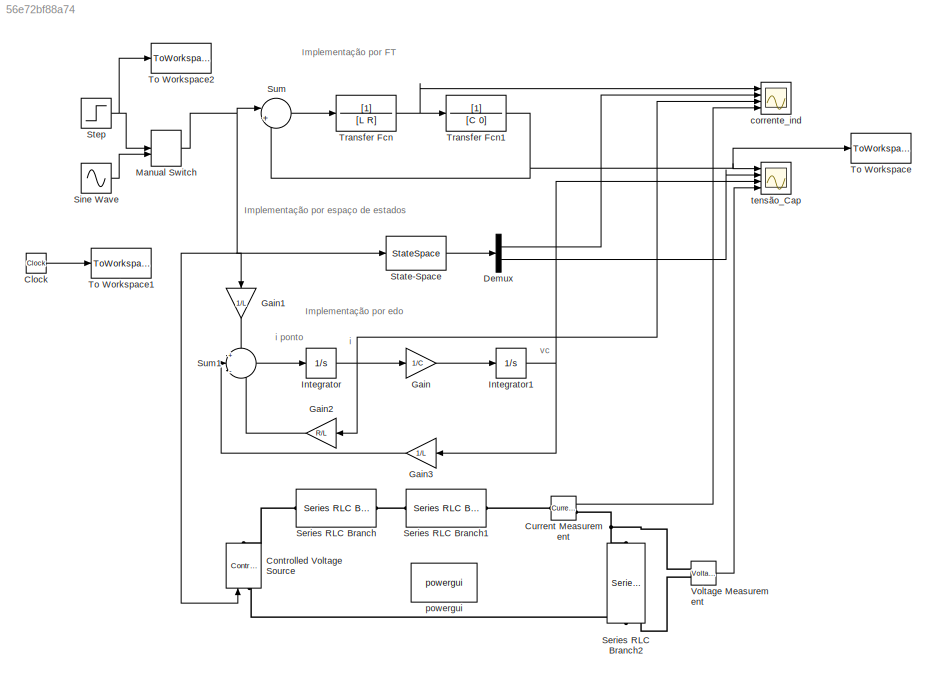
MODEL slx_56e72bf88a74
KIND model
CONFIG AbsTol = auto
CONFIG EnableMultiTasking = on
CONFIG FixedStep = auto
CONFIG MaxStep = 1e-4
CONFIG MinStep = auto
CONFIG RelTol = 1e-3
CONFIG SampleTimeConstraint = Unconstrained
CONFIG Solver = ode23tb
CONFIG SolverName = ode23tb
CONFIG StartTime = 0.0
CONFIG StopTime = 10
BLOCK [Clock] Clock
  Decimation = 5
BLOCK [Reference] Controlled Voltage Source  REF=powerlib/Electrical
Sources/Controlled Voltage Source
  NameLocation = right
  Ports = [1, 0, 0, 0, 0, 1, 1]
  SourceBlock = powerlib/Electrical\nSources/Controlled Voltage Source
  SourceProductBaseCode = PS
  SourceType = Controlled Voltage Source
BLOCK [Reference] Current Measurement  REF=powerlib/Measurements/Current Measurement
  Ports = [0, 1, 0, 0, 0, 1, 1]
  SourceBlock = powerlib/Measurements/Current Measurement
  SourceProductBaseCode = PS
  SourceType = Current Measurement
  UserDataPersistent = on
BLOCK [Demux] Demux
  Outputs = 2
  Ports = [1, 2]
BLOCK [Gain] Gain
  Gain = 1/C
BLOCK [Gain] Gain1
  Gain = 1/L
  NameLocation = left
BLOCK [Gain] Gain2
  Gain = R/L
  NameLocation = top
BLOCK [Gain] Gain3
  Gain = 1/L
  NameLocation = top
BLOCK [Integrator] Integrator
  Ports = [1, 1]
BLOCK [Integrator] Integrator1
  Ports = [1, 1]
BLOCK [ManualSwitch] Manual Switch
BLOCK [Reference] Series RLC Branch  REF=powerlib/Elements/Series RLC Branch
  Ports = [0, 0, 0, 0, 0, 1, 1]
  SourceBlock = powerlib/Elements/Series RLC Branch
  SourceProductBaseCode = PS
  SourceType = Series RLC Branch
BLOCK [Reference] Series RLC Branch1  REF=powerlib/Elements/Series RLC Branch
  Ports = [0, 0, 0, 0, 0, 1, 1]
  SourceBlock = powerlib/Elements/Series RLC Branch
  SourceProductBaseCode = PS
  SourceType = Series RLC Branch
BLOCK [Reference] Series RLC Branch2  REF=powerlib/Elements/Series RLC Branch
  NameLocation = left
  Ports = [0, 0, 0, 0, 0, 1, 1]
  SourceBlock = powerlib/Elements/Series RLC Branch
  SourceProductBaseCode = PS
  SourceType = Series RLC Branch
BLOCK [Sin] Sine Wave
  Amplitude = 10*sqrt(2)
  Frequency = 2*pi*100
  Ports = [0, 1]
  SampleTime = 0
BLOCK [StateSpace] State-Space
  A = [-R/L -1/L; 1/C 0]
  B = [1/L; 0]
  C = [1 0; 0 1]
  D = [0; 0]
  InitialCondition = 0
  Ports = [1, 1]
BLOCK [Step] Step
  After = 10
  SampleTime = 0
  Time = 0
BLOCK [Sum] Sum
  Inputs = |+-
  Ports = [2, 1]
BLOCK [Sum] Sum1
  Inputs = +|-|-
  Ports = [3, 1]
BLOCK [ToWorkspace] To Workspace
  FixptAsFi = on
  MaxDataPoints = inf
  Ports = [1]
  SampleTime = -1
  VariableName = v
BLOCK [ToWorkspace] To Workspace1
  FixptAsFi = on
  MaxDataPoints = inf
  Ports = [1]
  SampleTime = -1
  VariableName = t
BLOCK [ToWorkspace] To Workspace2
  FixptAsFi = on
  MaxDataPoints = inf
  Ports = [1]
  SampleTime = -1
  VariableName = v1
BLOCK [TransferFcn] Transfer Fcn
  Denominator = [L R]
BLOCK [TransferFcn] Transfer Fcn1
  Denominator = [C 0]
BLOCK [Reference] Voltage Measurement  REF=powerlib/Measurements/Voltage Measurement
  Ports = [0, 1, 0, 0, 0, 2]
  SourceBlock = powerlib/Measurements/Voltage Measurement
  SourceProductBaseCode = PS
  SourceType = Voltage Measurement
  UserDataPersistent = on
BLOCK [Scope] corrente_ind
  Floating = off
  NumInputPorts = 4
  Ports = [4]
  ScopeSpecificationString = Simulink.scopes.TimeScopeBlockCfg('CurrentConfiguration', extmgr.ConfigurationSet(extmgr.Configuration('Core','General UI',true),extmgr.Configuration('Core','Source UI',true),extmgr.Configuration('Sources','WiredSimulink',true,'DataLoggingVariableName','IL','DataLogging',true,'DataLoggingSaveFormat','Structure'),extmgr.Configuration('Visuals','Time Domain',true,'SerializedDisplays',{struct('MinYLi...<+3772ch>
BLOCK [Reference] powergui  REF=powerlib/powergui
  Ports = []
  Priority = 1
  SourceBlock = powerlib/powergui
  SourceProductBaseCode = PS
  SourceType = PSB option menu block
BLOCK [Scope] tensão_Cap
  Floating = off
  NumInputPorts = 4
  Ports = [4]
  ScopeSpecificationString = Simulink.scopes.TimeScopeBlockCfg('CurrentConfiguration', extmgr.ConfigurationSet(extmgr.Configuration('Core','General UI',true),extmgr.Configuration('Core','Source UI',true),extmgr.Configuration('Sources','WiredSimulink',true),extmgr.Configuration('Visuals','Time Domain',true,'SerializedDisplays',{struct('MinYLimReal','16.64605','MaxYLimReal','17.5885','YLabelReal','','MinYLimMag','16.64605','Max...<+1517ch>
ANNOTATION (root): Implementação por FT
ANNOTATION (root): Implementação por edo
ANNOTATION (root): Implementação por espaço de estados
ANNOTATION (root): i
ANNOTATION (root): i ponto
ANNOTATION (root): vc
LINE Clock:1 -> To Workspace1:1
LINE Current Measurement:1 -> corrente_ind:4
LINE Demux:1 -> corrente_ind:2
LINE Demux:2 -> tensão_Cap:2
LINE Gain1:1 -> Sum1:1
LINE Gain2:1 -> Sum1:3
LINE Gain3:1 -> Sum1:2
LINE Gain:1 -> Integrator1:1
NET Integrator1:1 -> Gain3:1, tensão_Cap:3
NET Integrator:1 -> Gain2:1, Gain:1, corrente_ind:3
NET Manual Switch:1 -> Controlled Voltage Source:1, Gain1:1, State-Space:1, Sum:1
LINE Sine Wave:1 -> Manual Switch:2
LINE State-Space:1 -> Demux:1
NET Step:1 -> Manual Switch:1, To Workspace2:1
LINE Sum1:1 -> Integrator:1
LINE Sum:1 -> Transfer Fcn:1
NET Transfer Fcn1:1 -> Sum:2, To Workspace:1, tensão_Cap:1
NET Transfer Fcn:1 -> Transfer Fcn1:1, corrente_ind:1
LINE Voltage Measurement:1 -> tensão_Cap:4
PNET net1: Controlled Voltage Source:LConn1 -- Series RLC Branch2:RConn1 -- Voltage Measurement:LConn2
PLINE Controlled Voltage Source:RConn1 -- Series RLC Branch:LConn1
PLINE Current Measurement:LConn1 -- Series RLC Branch1:RConn1
PNET net2: Current Measurement:RConn1 -- Series RLC Branch2:LConn1 -- Voltage Measurement:LConn1
PLINE Series RLC Branch1:LConn1 -- Series RLC Branch:RConn1
note: NET lines group one-source signal fan-out (src -> all destinations, sorted); 1:1 wires keep LINE; PNET lines group multi-terminal physical nets as a canonical sorted terminal list (undirected conserving connections); 2-terminal nets keep the pairwise PLINE form
